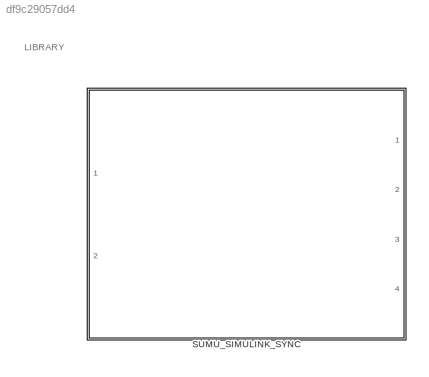
MODEL slx_df9c29057dd4
KIND library
CONFIG AbsTol = auto
CONFIG EnableMultiTasking = on
CONFIG FixedStep = auto
CONFIG MaxStep = auto
CONFIG MinStep = auto
CONFIG RelTol = 1e-3
CONFIG SampleTimeConstraint = Unconstrained
CONFIG Solver = ode45
CONFIG SolverName = ode45
CONFIG StartTime = 0.0
CONFIG StopTime = 10.0
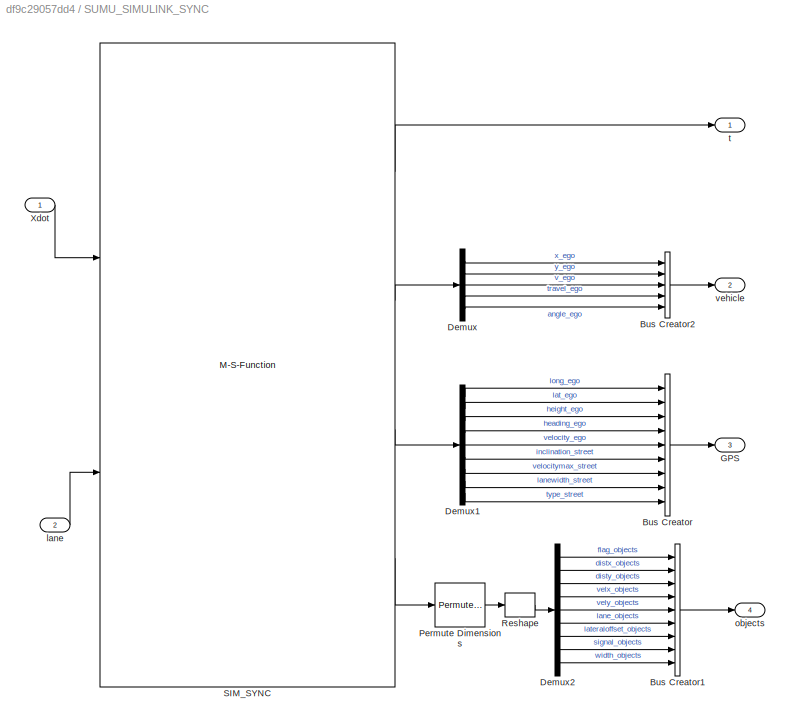
BLOCK [SubSystem] SUMU_SIMULINK_SYNC
  Ports = [2, 4]
  RequestExecContextInheritance = off
  Variant = off
BLOCK [BusCreator] SUMU_SIMULINK_SYNC/Bus Creator
  DisplayOption = bar
  InheritFromInputs = on
  Inputs = 9
  Ports = [9, 1]
BLOCK [BusCreator] SUMU_SIMULINK_SYNC/Bus Creator1
  DisplayOption = bar
  InheritFromInputs = on
  Inputs = 9
  Ports = [9, 1]
BLOCK [BusCreator] SUMU_SIMULINK_SYNC/Bus Creator2
  DisplayOption = bar
  InheritFromInputs = on
  Inputs = 5
  Ports = [5, 1]
BLOCK [Demux] SUMU_SIMULINK_SYNC/Demux
  DisplayOption = bar
  Outputs = 5
  Ports = [1, 5]
BLOCK [Demux] SUMU_SIMULINK_SYNC/Demux1
  DisplayOption = bar
  Outputs = 9
  Ports = [1, 9]
BLOCK [Demux] SUMU_SIMULINK_SYNC/Demux2
  DisplayOption = bar
  Outputs = [-1,-1,-1,-1,-1,-1,-1,-1,-1]
  Ports = [1, 9]
BLOCK [Outport] SUMU_SIMULINK_SYNC/GPS
  IconDisplay = Port number
  Port = 3
BLOCK [PermuteDimensions] SUMU_SIMULINK_SYNC/Permute Dimensions
BLOCK [Reshape] SUMU_SIMULINK_SYNC/Reshape
  Ports = [1, 1]
BLOCK [M-S-Function] SUMU_SIMULINK_SYNC/SIM_SYNC
  FunctionName = sf2SUMO_SYNC
  Parameters = SumoTs,EgoName,NumVehicles,SumoCfg,SumoIP,SumoPort,SumoGui,SumoOptions,NumTLights,SensorRange
  Ports = [2, 4]
BLOCK [Inport] SUMU_SIMULINK_SYNC/Xdot
  IconDisplay = Port number
BLOCK [Inport] SUMU_SIMULINK_SYNC/lane
  IconDisplay = Port number
  Port = 2
BLOCK [Outport] SUMU_SIMULINK_SYNC/objects
  IconDisplay = Port number
  Port = 4
BLOCK [Outport] SUMU_SIMULINK_SYNC/t
  IconDisplay = Port number
BLOCK [Outport] SUMU_SIMULINK_SYNC/vehicle
  IconDisplay = Port number
  Port = 2
ANNOTATION (root): LIBRARY
LINE SUMU_SIMULINK_SYNC/Bus Creator1:1 -> SUMU_SIMULINK_SYNC/objects:1
LINE SUMU_SIMULINK_SYNC/Bus Creator2:1 -> SUMU_SIMULINK_SYNC/vehicle:1
LINE SUMU_SIMULINK_SYNC/Bus Creator:1 -> SUMU_SIMULINK_SYNC/GPS:1
LINE SUMU_SIMULINK_SYNC/Demux1:1 -> SUMU_SIMULINK_SYNC/Bus Creator:1
LINE SUMU_SIMULINK_SYNC/Demux1:2 -> SUMU_SIMULINK_SYNC/Bus Creator:2
LINE SUMU_SIMULINK_SYNC/Demux1:3 -> SUMU_SIMULINK_SYNC/Bus Creator:3
LINE SUMU_SIMULINK_SYNC/Demux1:4 -> SUMU_SIMULINK_SYNC/Bus Creator:4
LINE SUMU_SIMULINK_SYNC/Demux1:5 -> SUMU_SIMULINK_SYNC/Bus Creator:5
LINE SUMU_SIMULINK_SYNC/Demux1:6 -> SUMU_SIMULINK_SYNC/Bus Creator:6
LINE SUMU_SIMULINK_SYNC/Demux1:7 -> SUMU_SIMULINK_SYNC/Bus Creator:7
LINE SUMU_SIMULINK_SYNC/Demux1:8 -> SUMU_SIMULINK_SYNC/Bus Creator:8
LINE SUMU_SIMULINK_SYNC/Demux1:9 -> SUMU_SIMULINK_SYNC/Bus Creator:9
LINE SUMU_SIMULINK_SYNC/Demux2:1 -> SUMU_SIMULINK_SYNC/Bus Creator1:1
LINE SUMU_SIMULINK_SYNC/Demux2:2 -> SUMU_SIMULINK_SYNC/Bus Creator1:2
LINE SUMU_SIMULINK_SYNC/Demux2:3 -> SUMU_SIMULINK_SYNC/Bus Creator1:3
LINE SUMU_SIMULINK_SYNC/Demux2:4 -> SUMU_SIMULINK_SYNC/Bus Creator1:4
LINE SUMU_SIMULINK_SYNC/Demux2:5 -> SUMU_SIMULINK_SYNC/Bus Creator1:5
LINE SUMU_SIMULINK_SYNC/Demux2:6 -> SUMU_SIMULINK_SYNC/Bus Creator1:6
LINE SUMU_SIMULINK_SYNC/Demux2:7 -> SUMU_SIMULINK_SYNC/Bus Creator1:7
LINE SUMU_SIMULINK_SYNC/Demux2:8 -> SUMU_SIMULINK_SYNC/Bus Creator1:8
LINE SUMU_SIMULINK_SYNC/Demux2:9 -> SUMU_SIMULINK_SYNC/Bus Creator1:9
LINE SUMU_SIMULINK_SYNC/Demux:1 -> SUMU_SIMULINK_SYNC/Bus Creator2:1
LINE SUMU_SIMULINK_SYNC/Demux:2 -> SUMU_SIMULINK_SYNC/Bus Creator2:2
LINE SUMU_SIMULINK_SYNC/Demux:3 -> SUMU_SIMULINK_SYNC/Bus Creator2:3
LINE SUMU_SIMULINK_SYNC/Demux:4 -> SUMU_SIMULINK_SYNC/Bus Creator2:4
LINE SUMU_SIMULINK_SYNC/Demux:5 -> SUMU_SIMULINK_SYNC/Bus Creator2:5
LINE SUMU_SIMULINK_SYNC/Permute Dimensions:1 -> SUMU_SIMULINK_SYNC/Reshape:1
LINE SUMU_SIMULINK_SYNC/Reshape:1 -> SUMU_SIMULINK_SYNC/Demux2:1
LINE SUMU_SIMULINK_SYNC/SIM_SYNC:1 -> SUMU_SIMULINK_SYNC/t:1
LINE SUMU_SIMULINK_SYNC/SIM_SYNC:2 -> SUMU_SIMULINK_SYNC/Demux:1
LINE SUMU_SIMULINK_SYNC/SIM_SYNC:3 -> SUMU_SIMULINK_SYNC/Demux1:1
LINE SUMU_SIMULINK_SYNC/SIM_SYNC:4 -> SUMU_SIMULINK_SYNC/Permute Dimensions:1
LINE SUMU_SIMULINK_SYNC/Xdot:1 -> SUMU_SIMULINK_SYNC/SIM_SYNC:1
LINE SUMU_SIMULINK_SYNC/lane:1 -> SUMU_SIMULINK_SYNC/SIM_SYNC:2
